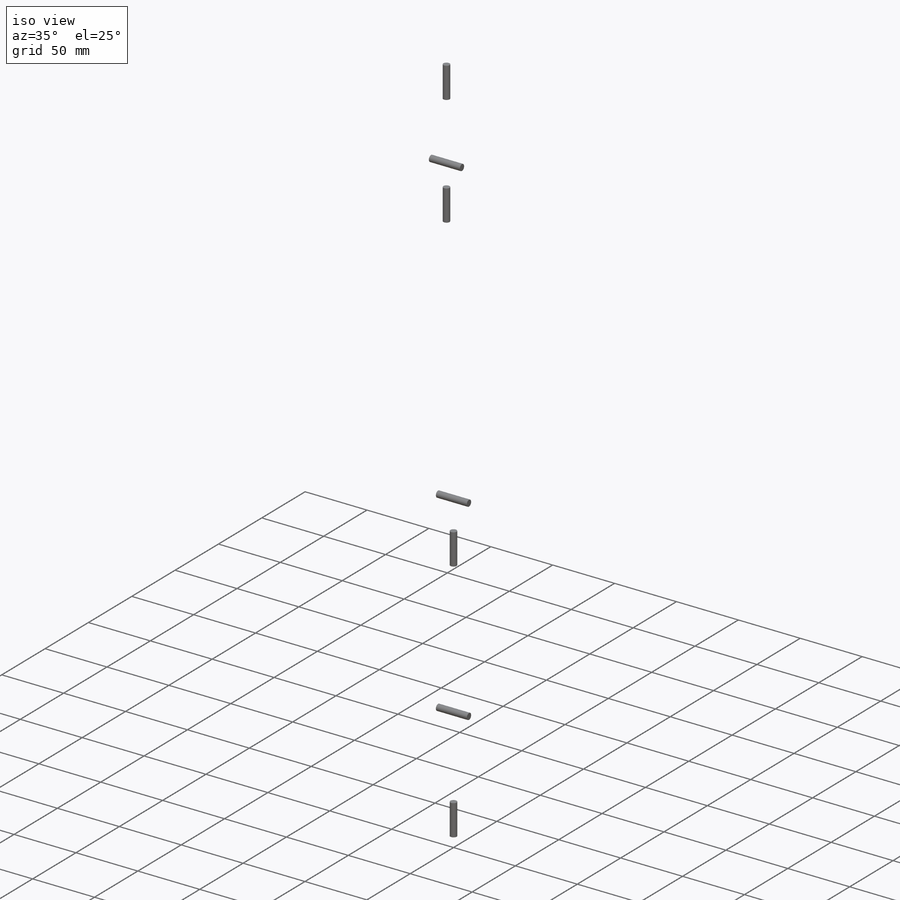
[diagram: iso view]
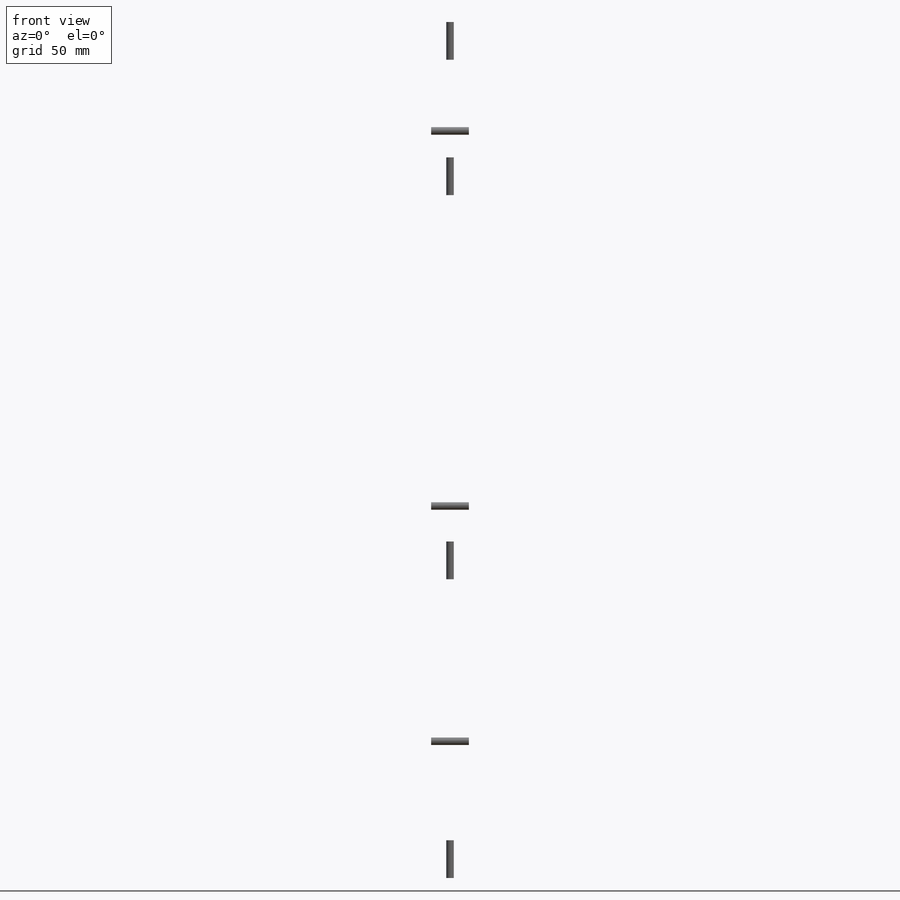
[diagram: front view]
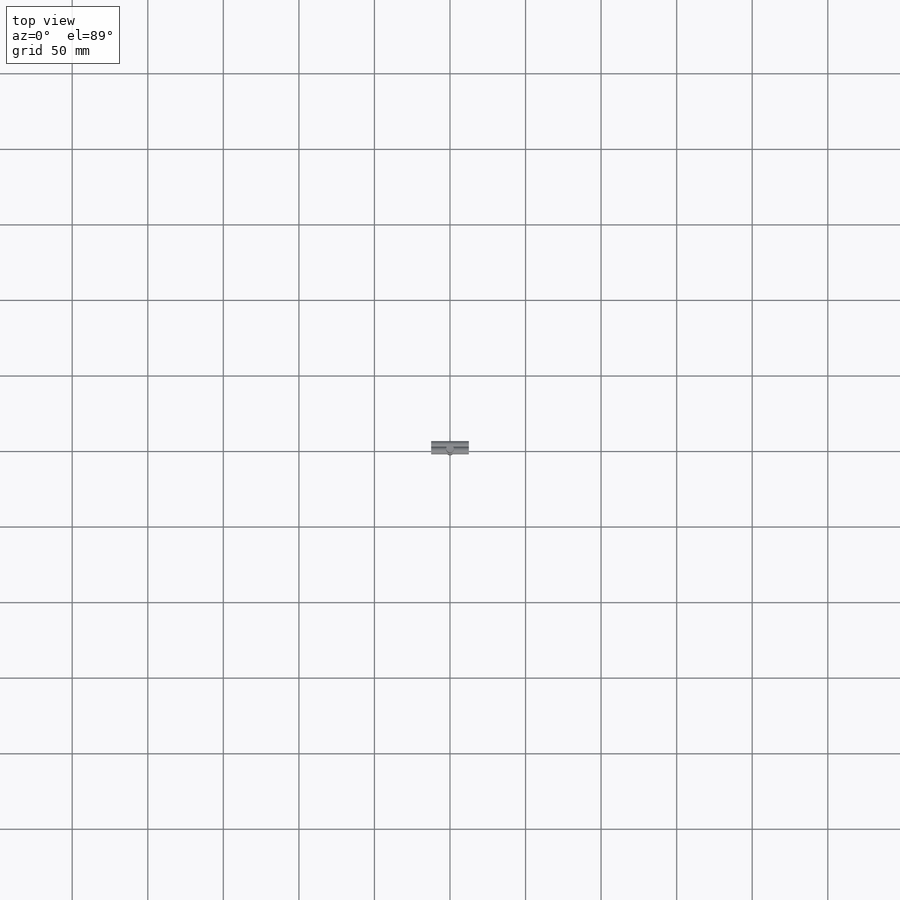
[diagram: top view]
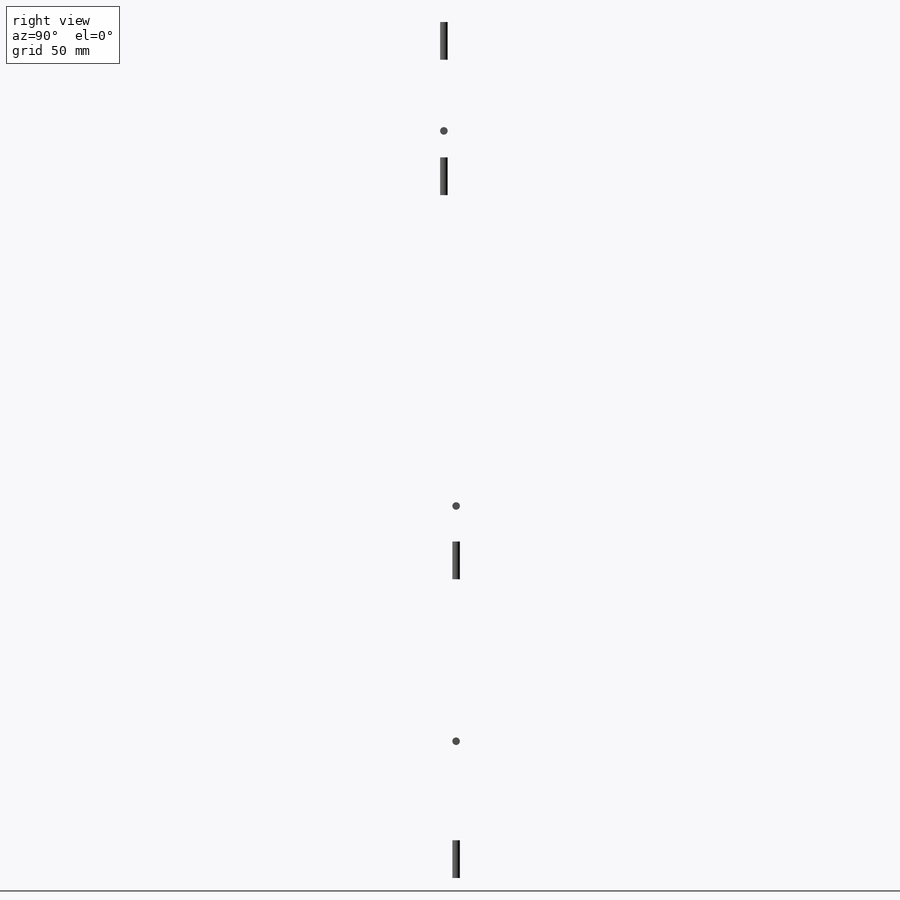
[diagram: right view]
SOLIDWORKS PART (.sldprt)
format: sldprt  version: not decoded by parser v0  size: 230,400 bytes
history: native  units: mm
features: sketch x7, extrude x7, plane x7, material x1 (+16 scaffold rows collapsed)
feature tree (38):
  scaffold x16  (default folders/planes/origin — collapsed)
  material  "Material <not specified>"
  sketch  "Sketch1"  dims[D1=5.0mm]
  extrude  "Axis 0 - AX12"  Depth=25mm
  plane  "Plane1"  Offset=90.525mm
  sketch  "Sketch2"  dims[D1=5.0mm]
  extrude  "Axis 1 - EX106"  Depth=25mm
  plane  "Plane3"  Offset=119.7mm
  sketch  "Sketch3"  dims[D1=5.0mm]
  extrude  "Axis 2 - RX64 1"  Depth=25mm
  plane  "Plane4"  Offset=36mm
  sketch  "Sketch4"  dims[D1=5.0mm]
  extrude  "Axis 3 - RX64 2"  Depth=25mm
  plane  "Plane5"  Offset=8.1mm
  plane  "Plane6"  Offset=218.2mm
  sketch  "Sketch5"  dims[D1=5.0mm]
  extrude  "Axis 4 - RX28 1"  Depth=25mm
  plane  "Plane7"  Offset=30mm
  sketch  "Sketch6"  dims[D1=5.0mm]
  extrude  "Axis 5 - RX28 2"  Depth=25mm
  plane  "Plane8"  Offset=59.6mm
  sketch  "Sketch7"  dims[D1=5.0mm]
  extrude  "Boss-Extrude1"  Depth=25mm
decode coverage: 14 of 14 modeling features carry decoded parameters
note: suppression state not decoded; provenance and decode notes live in map.json
